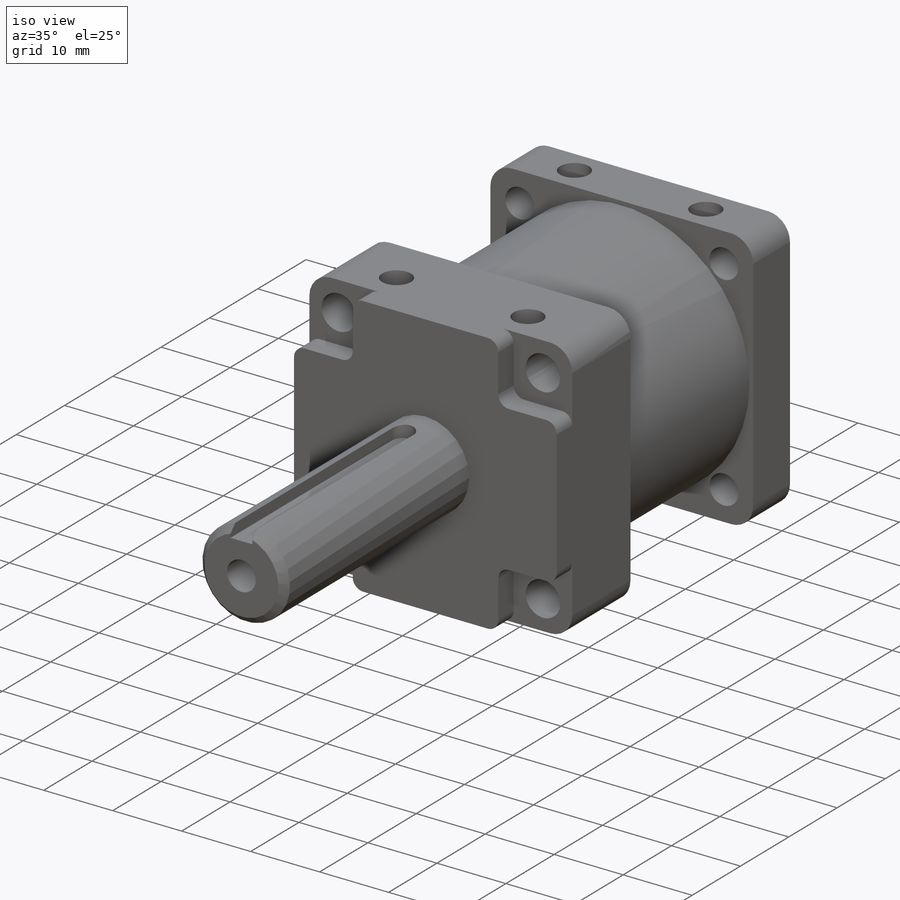
[diagram: iso view]
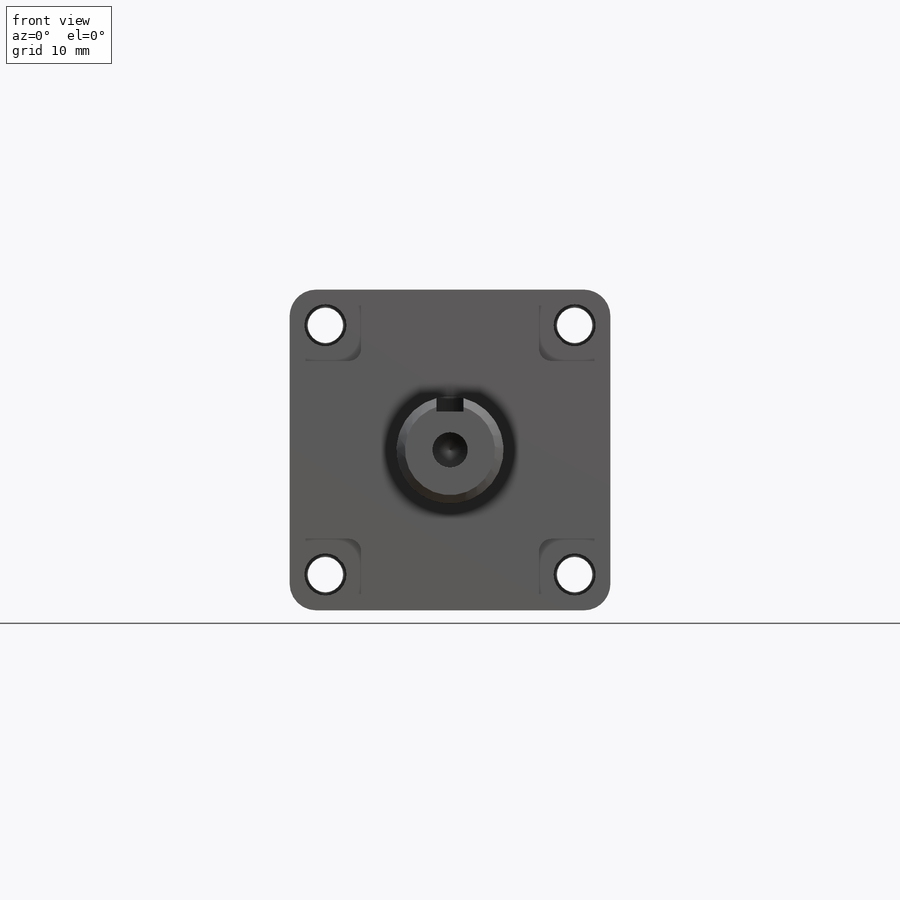
[diagram: front view]
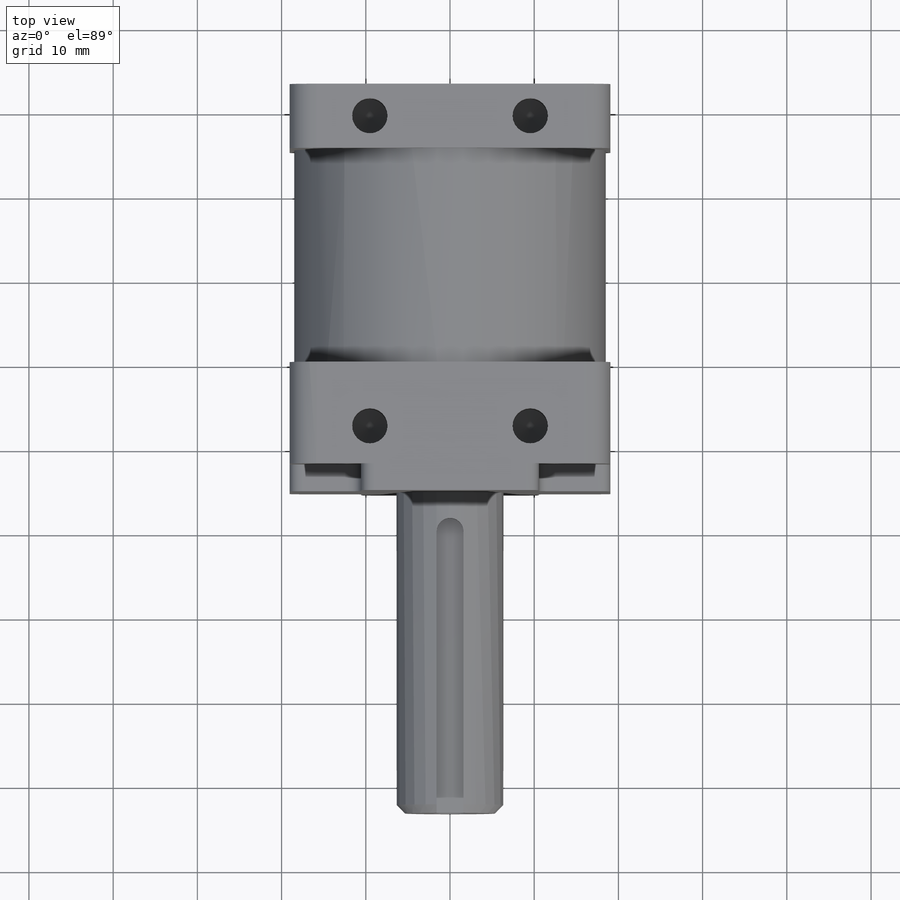
[diagram: top view]
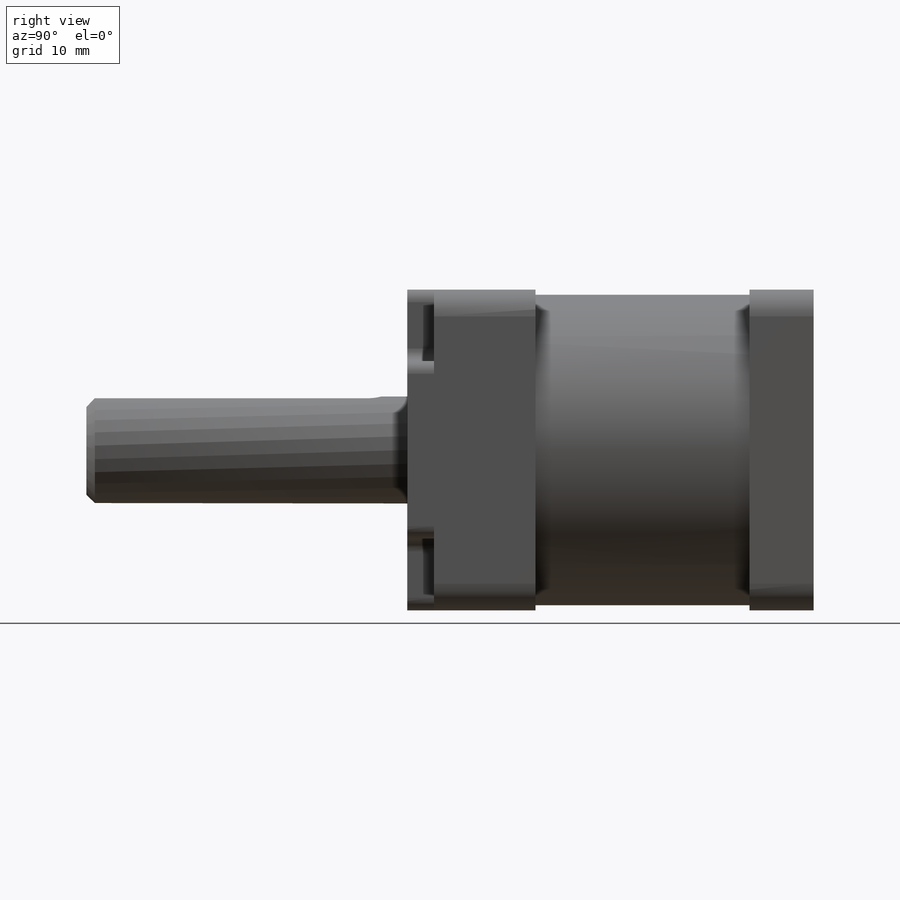
[diagram: right view]
SOLIDWORKS PART (.sldprt)
format: sldprt  version: not decoded by parser v0  size: 550,400 bytes
history: native  units: mm
features: sketch x13, thread x9, extrude x4, fillet x3, cut_extrude x3, hole x3, material x1, chamfer x1, mirror x1 (+13 scaffold rows collapsed)
feature tree (51):
  scaffold x13  (default folders/planes/origin — collapsed)
  material  "AISI 1045 Steel, cold drawn"
  sketch  "Sketch1"  dims[D1=38.1mm]
  extrude  "Extrude1"  Depth=15.24mm
  fillet  "Fillet1"  Radius=3.175mm
  sketch  "Sketch2"  dims[D1=12.7mm]
  extrude  "Extrude2"  Depth=38.1mm
  chamfer  "Chamfer1"  Distance=1mm Angle=45deg
  sketch  "Sketch3"  dims[D1=3.175mm]
  cut_extrude  "Extrude3"  Depth=35mm
  fillet  "Fillet2"  [1 undecoded]
  hole  "M5x0.8 Tapped Hole1"  Diameter=4.2mm Depth=14mm
  sketch  "Sketch6"
  sketch  "Sketch5"  dims[hole-wizard template sketch: 50 standard entries collapsed; hole parameters above]
  thread  "Hole Thread1"  Diameter=10mm  [1 undecoded]
  sketch  "Sketch7"  dims[D1=37.0mm]
  extrude  "Extrude4"  Depth=25.4mm
  sketch  "Sketch8"  dims[D1=0.0mm]
  extrude  "Extrude5"  Depth=7.62mm
  sketch  "Sketch9"  dims[D1=8.5mm]
  cut_extrude  "Extrude7"  Depth=3.175mm
  fillet  "Fillet3"  Radius=1.5mm
  sketch  "Sketch10"  dims[D1=5.0mm]
  cut_extrude  "Extrude8"  [1 undecoded]
  hole  "M5x0.8 Tapped Hole2"  Diameter=4.2mm Depth=7.62mm
  sketch  "Sketch12"
  sketch  "Sketch11"  dims[hole-wizard template sketch: 60 standard entries collapsed; hole parameters kept: c18.Thru Tap Drill Depth=7.62mm]
  thread  "Hole Thread2"  Diameter=5mm  [1 undecoded]
  thread  "Hole Thread3"  Diameter=5mm  [1 undecoded]
  thread  "Hole Thread4"  Diameter=5mm  [1 undecoded]
  thread  "Hole Thread5"  Diameter=5mm  [1 undecoded]
  hole  "M5x0.8 Tapped Hole3"  Diameter=4.2mm Depth=7.62mm
  sketch  "Sketch14"  dims[D1=9.525mm D2=7.62mm]
  sketch  "Sketch13"  dims[hole-wizard template sketch: 47 standard entries collapsed; hole parameters kept: c15.Tap Drill Depth=7.62mm c15.D3=~14.816244mm c15.Drill Angle=118.0deg]
  thread  "Hole Thread6"  Diameter=7.62mm  [1 undecoded]
  thread  "Hole Thread7"  Diameter=7.62mm  [1 undecoded]
  thread  "Hole Thread8"  Diameter=7.62mm  [1 undecoded]
  thread  "Hole Thread9"  Diameter=7.62mm  [1 undecoded]
  mirror  "Mirror2"
decode coverage: 32 of 37 modeling features carry decoded parameters
note: ~ marks probable driven/reference dimensions
note: 11 parameter values undecoded
note: suppression state not decoded; provenance and decode notes live in map.json
